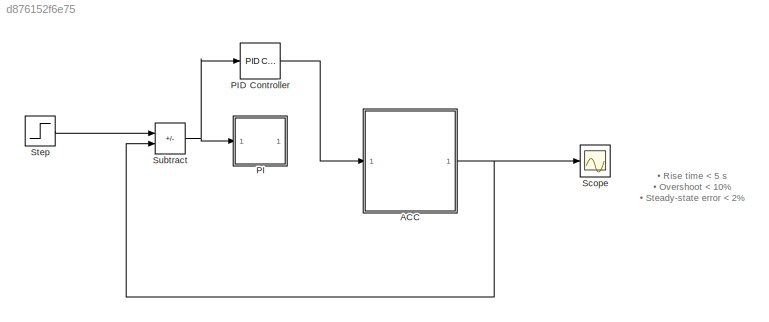
MODEL slx_d876152f6e75
KIND model
CONFIG AbsTol = auto
CONFIG EnableMultiTasking = off
CONFIG FixedStep = auto
CONFIG MaxStep = auto
CONFIG MinStep = auto
CONFIG PreLoadFcn = u = 500;\nm = 1000;\nb = 50;
CONFIG RelTol = 1e-3
CONFIG SampleTimeConstraint = Unconstrained
CONFIG Solver = VariableStepAuto
CONFIG SolverName = VariableStepAuto
CONFIG StartTime = 0.0
CONFIG StopTime = 1000
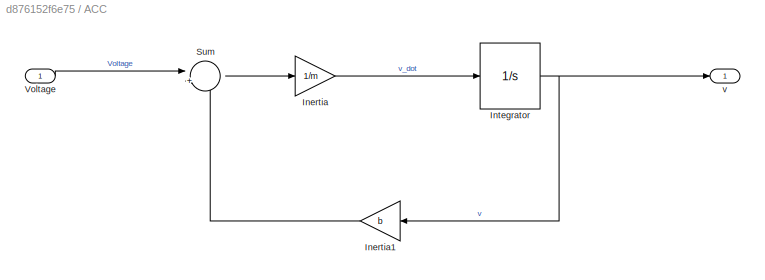
BLOCK [SubSystem] ACC
  Ports = [1, 1]
  RequestExecContextInheritance = off
BLOCK [Gain] ACC/Inertia
  Gain = 1/m
BLOCK [Gain] ACC/Inertia1
  Gain = b
BLOCK [Integrator] ACC/Integrator
  Ports = [1, 1]
BLOCK [Sum] ACC/Sum
  Inputs = |+-
  Ports = [2, 1]
BLOCK [Inport] ACC/Voltage
BLOCK [Outport] ACC/v
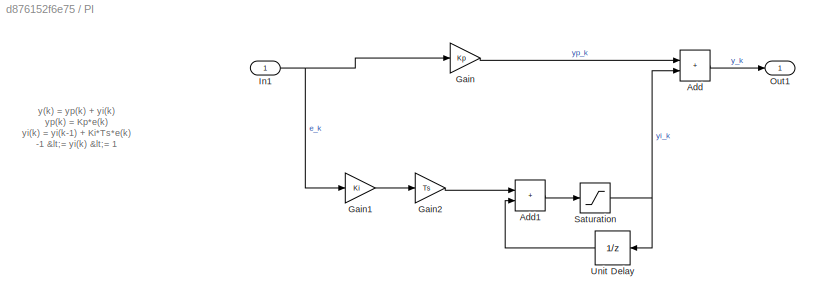
BLOCK [SubSystem] PI
  Commented = on
  Ports = [1, 1]
  RequestExecContextInheritance = off
  TreatAsAtomicUnit = on
BLOCK [Sum] PI/Add
  IconShape = rectangular
  Ports = [2, 1]
BLOCK [Sum] PI/Add1
  IconShape = rectangular
  Ports = [2, 1]
BLOCK [Gain] PI/Gain
  Gain = Kp
BLOCK [Gain] PI/Gain1
  Gain = Ki
BLOCK [Gain] PI/Gain2
  Gain = Ts
BLOCK [Inport] PI/In1
BLOCK [Outport] PI/Out1
BLOCK [Saturate] PI/Saturation
  LowerLimit = -1
  UpperLimit = 1
BLOCK [UnitDelay] PI/Unit Delay
  HasFrameUpgradeWarning = on
  NameLocation = top
  SampleTime = -1
BLOCK [Reference] PID Controller  REF=simulink/Continuous/PID Controller
  Ports = [1, 1]
  SourceBlock = simulink/Continuous/PID Controller
  SourceProductBaseCode = SL
  SourceType = PID 1dof
BLOCK [Scope] Scope
  Floating = off
  NumInputPorts = 1
  Ports = [1]
  ScopeSpecificationString = Simulink.scopes.TimeScopeBlockCfg('CurrentConfiguration', extmgr.ConfigurationSet(extmgr.Configuration('Core','General UI',true),extmgr.Configuration('Core','Source UI',true),extmgr.Configuration('Sources','WiredSimulink',true),extmgr.Configuration('Visuals','Time Domain',true,'SerializedDisplays',{struct('MinYLimReal','-0.0125','MaxYLimReal','0.1125','YLabelReal','','MinYLimMag','0.00000','MaxYLi...<+1344ch>
BLOCK [Step] Step
  After = u
  SampleTime = 0
  Time = 0
BLOCK [Sum] Subtract
  IconShape = rectangular
  Inputs = +-
  Ports = [2, 1]
ANNOTATION (root): • Rise time < 5 s • Overshoot < 10% • Steady-state error < 2%
ANNOTATION PI: y(k) = yp(k) + yi(k) yp(k) = Kp*e(k) yi(k) = yi(k-1) + Ki*Ts*e(k) -1 <= yi(k) <= 1
LINE ACC/Inertia1:1 -> ACC/Sum:2
LINE ACC/Inertia:1 -> ACC/Integrator:1
NET ACC/Integrator:1 -> ACC/Inertia1:1, ACC/v:1
LINE ACC/Sum:1 -> ACC/Inertia:1
LINE ACC/Voltage:1 -> ACC/Sum:1
NET ACC:1 -> Scope:1, Subtract:2
LINE PI/Add1:1 -> PI/Saturation:1
LINE PI/Add:1 -> PI/Out1:1
LINE PI/Gain1:1 -> PI/Gain2:1
LINE PI/Gain2:1 -> PI/Add1:1
LINE PI/Gain:1 -> PI/Add:1
NET PI/In1:1 -> PI/Gain1:1, PI/Gain:1
NET PI/Saturation:1 -> PI/Add:2, PI/Unit Delay:1
LINE PI/Unit Delay:1 -> PI/Add1:2
LINE PID Controller:1 -> ACC:1
LINE Step:1 -> Subtract:1
NET Subtract:1 -> PI:1, PID Controller:1
note: NET lines group one-source signal fan-out (src -> all destinations, sorted); 1:1 wires keep LINE
